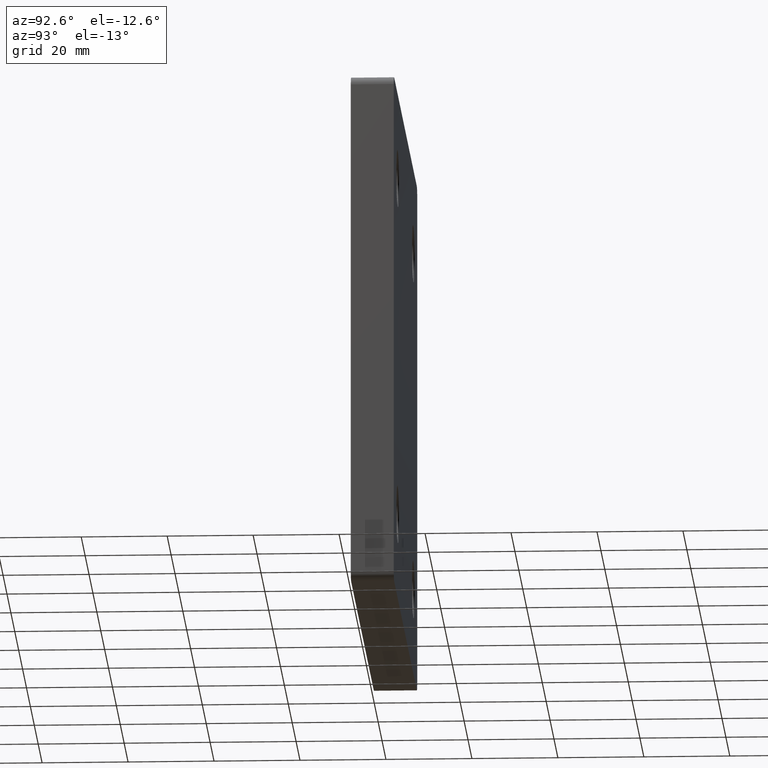
[diagram: clean part render]
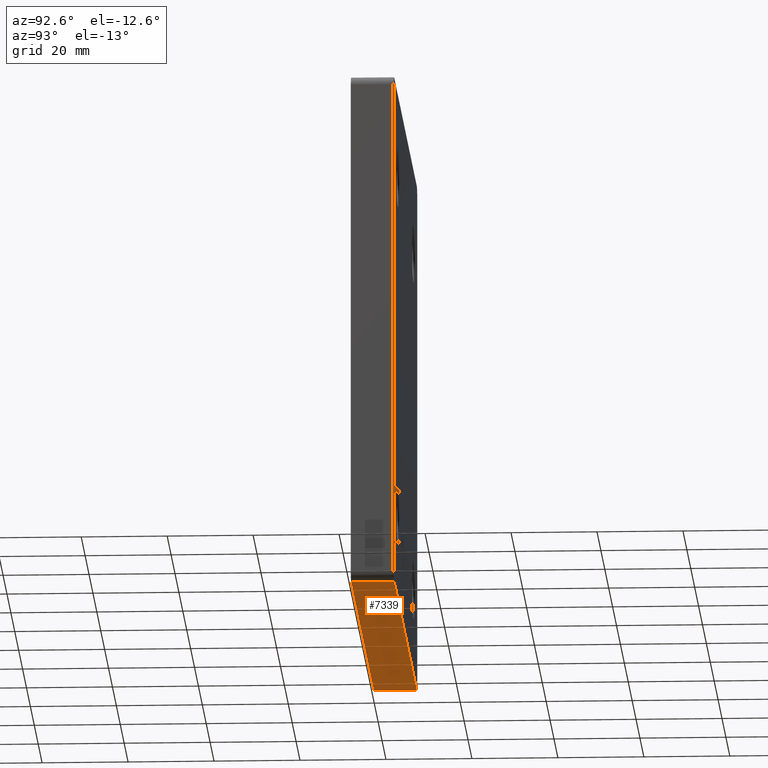
[diagram: same view with one face highlighted and labeled with its STEP entity id]
A machine part, auxiliary view. The second image highlights one B-rep face of the part: STEP entity #7339.
In plain terms, the highlighted planar face has unit normal (0, 0, 1).
Its self-contained STEP definition (entity closure, byte-faithful):
#117 = CARTESIAN_POINT ( 'NONE',  ( -59.99999999999999289, 0.000000000000000000, -59.99999999999999289 ) ) ;
#491 = EDGE_CURVE ( 'NONE', #6679, #3043, #2476, .T. ) ;
#692 = ORIENTED_EDGE ( 'NONE', *, *, #491, .F. ) ;
#1035 = VERTEX_POINT ( 'NONE', #1498 ) ;
#1498 = CARTESIAN_POINT ( 'NONE',  ( 58.00000000000000000, 0.000000000000000000, -59.99999999999999289 ) ) ;
#1746 = CARTESIAN_POINT ( 'NONE',  ( -59.99999999999999289, 10.00000000000000000, -59.99999999999999289 ) ) ;
#2391 = LINE ( 'NONE', #9832, #13745 ) ;
#2476 = LINE ( 'NONE', #12277, #3992 ) ;
#3043 = VERTEX_POINT ( 'NONE', #11958 ) ;
#3473 = VERTEX_POINT ( 'NONE', #10777 ) ;
#3877 = PLANE ( 'NONE',  #11522 ) ;
#3956 = VECTOR ( 'NONE', #10595, 1000.000000000000000 ) ;
#3992 = VECTOR ( 'NONE', #7157, 1000.000000000000000 ) ;
#4376 = ORIENTED_EDGE ( 'NONE', *, *, #4513, .T. ) ;
#4513 = EDGE_CURVE ( 'NONE', #6679, #1035, #7195, .T. ) ;
#4970 = FACE_OUTER_BOUND ( 'NONE', #10038, .T. ) ;
#6679 = VERTEX_POINT ( 'NONE', #13504 ) ;
#7013 = CARTESIAN_POINT ( 'NONE',  ( 58.00000000000000000, 10.00000000000000000, -59.99999999999999289 ) ) ;
#7109 = DIRECTION ( 'NONE',  ( 0.000000000000000000, 0.000000000000000000, 1.000000000000000000 ) ) ;
#7157 = DIRECTION ( 'NONE',  ( -1.000000000000000000, -0.000000000000000000, -0.000000000000000000 ) ) ;
#7195 = LINE ( 'NONE', #7013, #10700 ) ;
#7339 = ADVANCED_FACE ( 'NONE', ( #4970 ), #3877, .F. ) ;
#7477 = EDGE_CURVE ( 'NONE', #1035, #3473, #11145, .T. ) ;
#8024 = DIRECTION ( 'NONE',  ( 1.000000000000000000, 0.000000000000000000, -0.000000000000000000 ) ) ;
#8701 = ORIENTED_EDGE ( 'NONE', *, *, #12764, .T. ) ;
#9626 = ORIENTED_EDGE ( 'NONE', *, *, #7477, .T. ) ;
#9662 = DIRECTION ( 'NONE',  ( -0.000000000000000000, 1.000000000000000000, -0.000000000000000000 ) ) ;
#9832 = CARTESIAN_POINT ( 'NONE',  ( -57.99999999999998579, 10.00000000000000000, -59.99999999999999289 ) ) ;
#10038 = EDGE_LOOP ( 'NONE', ( #692, #4376, #9626, #8701 ) ) ;
#10595 = DIRECTION ( 'NONE',  ( -1.000000000000000000, -0.000000000000000000, -0.000000000000000000 ) ) ;
#10700 = VECTOR ( 'NONE', #12138, 1000.000000000000000 ) ;
#10777 = CARTESIAN_POINT ( 'NONE',  ( -57.99999999999998579, 0.000000000000000000, -59.99999999999999289 ) ) ;
#11145 = LINE ( 'NONE', #117, #3956 ) ;
#11522 = AXIS2_PLACEMENT_3D ( 'NONE', #1746, #7109, #8024 ) ;
#11958 = CARTESIAN_POINT ( 'NONE',  ( -57.99999999999998579, 10.00000000000000000, -59.99999999999999289 ) ) ;
#12138 = DIRECTION ( 'NONE',  ( 0.000000000000000000, -1.000000000000000000, 0.000000000000000000 ) ) ;
#12277 = CARTESIAN_POINT ( 'NONE',  ( -59.99999999999999289, 10.00000000000000000, -59.99999999999999289 ) ) ;
#12764 = EDGE_CURVE ( 'NONE', #3473, #3043, #2391, .T. ) ;
#13504 = CARTESIAN_POINT ( 'NONE',  ( 58.00000000000000000, 10.00000000000000000, -59.99999999999999289 ) ) ;
#13745 = VECTOR ( 'NONE', #9662, 1000.000000000000000 ) ;